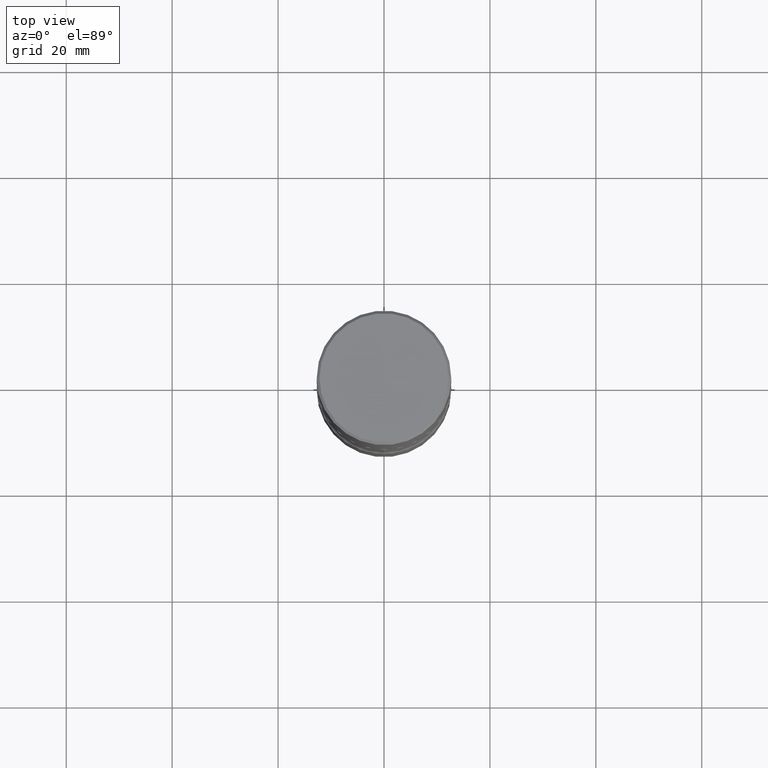
[diagram: clean part render]
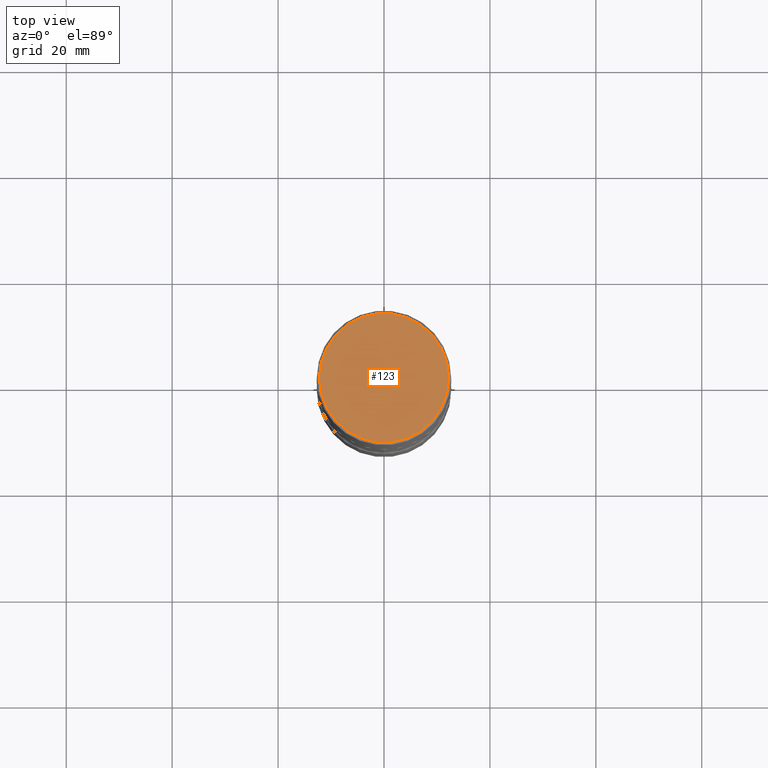
[diagram: same view with one face highlighted and labeled with its STEP entity id]
A machine part, top view. The second image highlights one B-rep face of the part: STEP entity #123.
In plain terms, the highlighted planar face has unit normal (0, -0, -1).
Its self-contained STEP definition (entity closure, byte-faithful):
#16 = PLANE ( 'NONE',  #249 ) ;
#28 = EDGE_CURVE ( 'NONE', #457, #323, #118, .T. ) ;
#118 = CIRCLE ( 'NONE', #437, 0.4800000000000001488 ) ;
#123 = ADVANCED_FACE ( 'NONE', ( #408 ), #16, .F. ) ;
#124 = DIRECTION ( 'NONE',  ( 1.000000000000000000, -6.982962677686266711E-15, 4.876036955247127722E-29 ) ) ;
#132 = CARTESIAN_POINT ( 'NONE',  ( -0.4800000000000001488, 3.386736898677840380E-15, 1.280553747027767124E-17 ) ) ;
#136 = DIRECTION ( 'NONE',  ( 2.438088387897960049E-29, -3.491481338843145188E-15, -1.000000000000000000 ) ) ;
#162 = CARTESIAN_POINT ( 'NONE',  ( -3.131554243005659264E-46, 4.471029511141341874E-32, 1.280553747030123384E-17 ) ) ;
#163 = CIRCLE ( 'NONE', #215, 0.4800000000000001488 ) ;
#189 = EDGE_LOOP ( 'NONE', ( #228, #370 ) ) ;
#204 = DIRECTION ( 'NONE',  ( -2.445468806185136597E-29, 3.491481338843145583E-15, 1.000000000000000000 ) ) ;
#215 = AXIS2_PLACEMENT_3D ( 'NONE', #162, #297, #248 ) ;
#228 = ORIENTED_EDGE ( 'NONE', *, *, #232, .T. ) ;
#232 = EDGE_CURVE ( 'NONE', #323, #457, #163, .T. ) ;
#248 = DIRECTION ( 'NONE',  ( 1.000000000000000000, -6.982962677686266711E-15, 4.876036955247127722E-29 ) ) ;
#249 = AXIS2_PLACEMENT_3D ( 'NONE', #442, #136, #310 ) ;
#297 = DIRECTION ( 'NONE',  ( -2.445468806185136597E-29, 3.491481338843145583E-15, 1.000000000000000000 ) ) ;
#310 = DIRECTION ( 'NONE',  ( -1.000000000000000000, 6.982962677686265922E-15, -4.876176775795935793E-29 ) ) ;
#323 = VERTEX_POINT ( 'NONE', #132 ) ;
#370 = ORIENTED_EDGE ( 'NONE', *, *, #28, .T. ) ;
#372 = CARTESIAN_POINT ( 'NONE',  ( 0.4800000000000001488, -3.396558832296483282E-15, 1.280553747032483033E-17 ) ) ;
#408 = FACE_OUTER_BOUND ( 'NONE', #189, .T. ) ;
#424 = CARTESIAN_POINT ( 'NONE',  ( -3.131554243005659264E-46, 4.471029511141341874E-32, 1.280553747030123384E-17 ) ) ;
#437 = AXIS2_PLACEMENT_3D ( 'NONE', #424, #204, #124 ) ;
#442 = CARTESIAN_POINT ( 'NONE',  ( 3.351822085289408731E-15, 0.4800000000000001488, -1.669508273909559839E-15 ) ) ;
#457 = VERTEX_POINT ( 'NONE', #372 ) ;